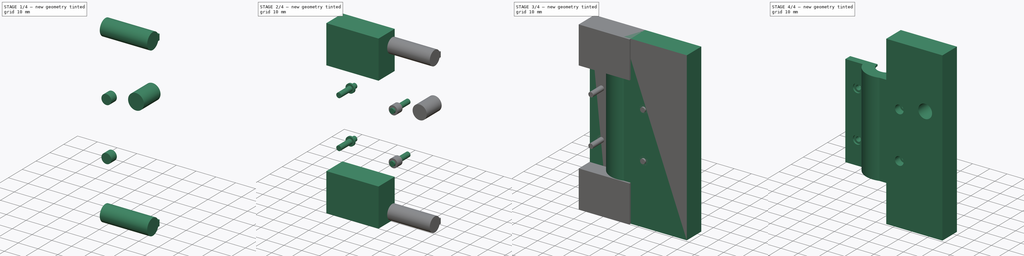
[diagram: build sequence overview — one tinted view per stage of 4, left to right]
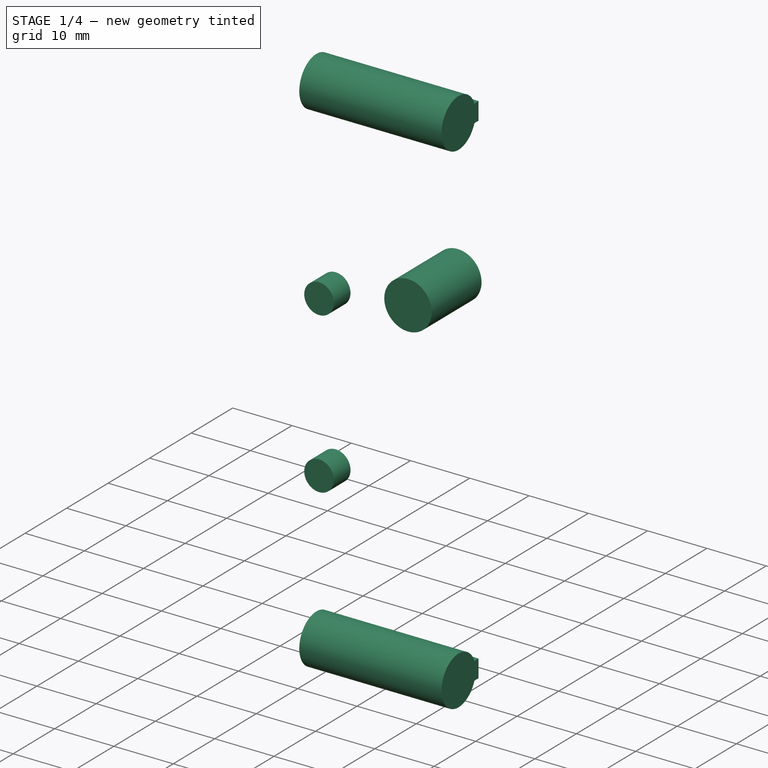
[diagram: stage 1 of 4 — iso view after this stage's code; geometry added in this stage tinted green]
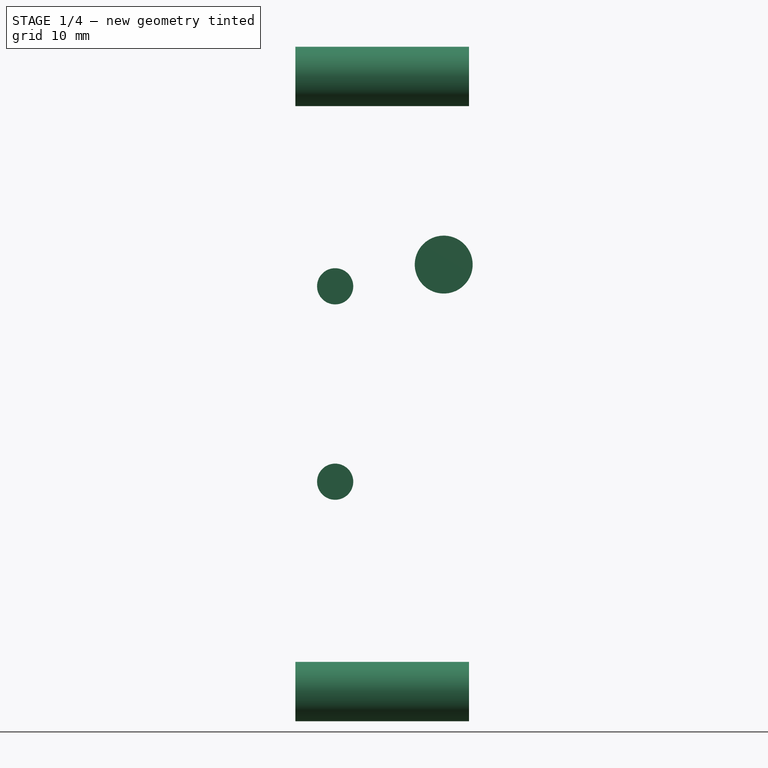
[diagram: stage 1 of 4 — front view after this stage's code; geometry added in this stage tinted green]
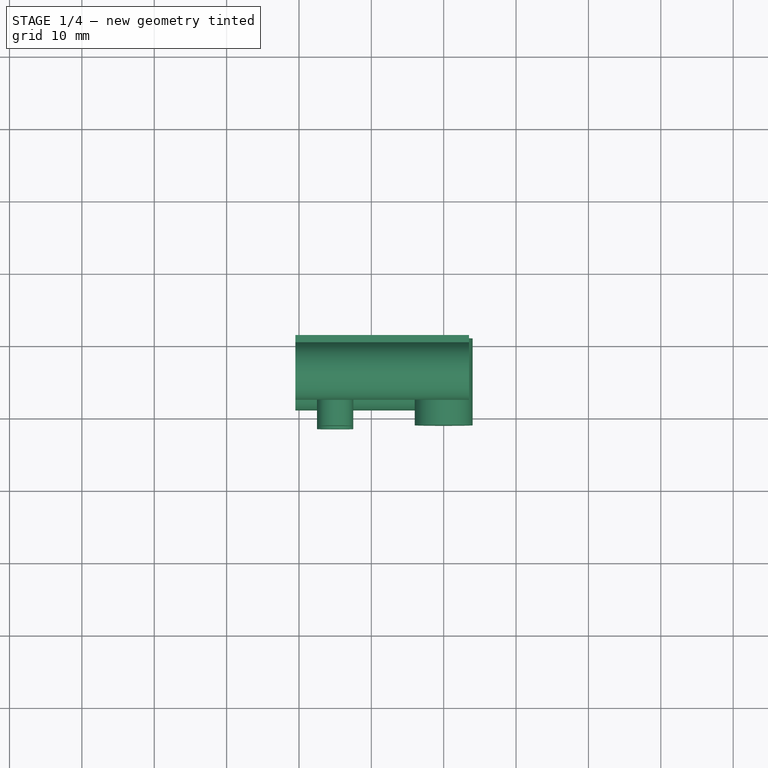
[diagram: stage 1 of 4 — top view after this stage's code; geometry added in this stage tinted green]
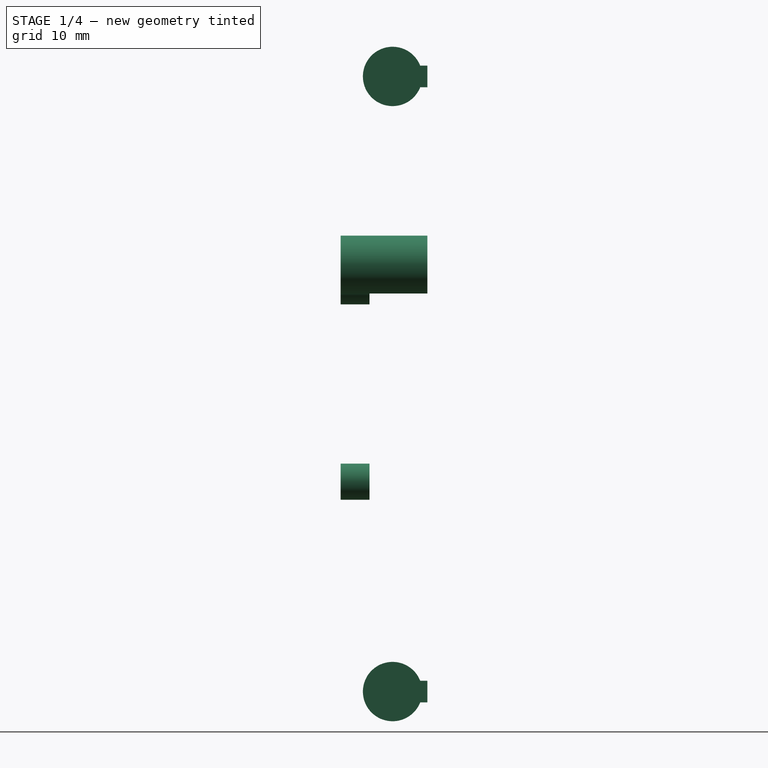
[diagram: stage 1 of 4 — right view after this stage's code; geometry added in this stage tinted green]
FCSTD DOCUMENT  (FreeCAD 0.16R6707 (Git))
Label: LeftShoulder
License: All rights reserved
LicenseURL: http://en.wikipedia.org/wiki/All_rights_reserved
objects: Sketcher::SketchObject×9, PartDesign::Pad×9, Part::MultiFuse×2, Part::Cut×2
note: 31 computed .brp shape members not serialized (recipe doc carries the construction recipe); baked Part::Feature solids carry a one-line shape summary decoded from their .brp

FEATURE [PartDesign::Pad] Pad006
  Length = 24
  Length2 = 100
  Placement = pos=(33.5,0,0) rot=(0.57735,0.57735,0.57735;2.0944rad)
  Reversed = true
  Sketch = -> Sketch008
  Type = 0
FEATURE [PartDesign::Pad] Pad007
  Length = 4
  Length2 = 100
  Placement = pos=(0,-12,0) rot=(1,0,0;1.5708rad)
  Reversed = true
  Sketch = -> Sketch010
  Type = 0
FEATURE [Sketcher::SketchObject] Sketch012
  Placement = pos=(0,0,0) rot=(1,0,0;1.5708rad)
  sketch-geometry (1):
    g0: Circle CenterX=30 CenterY=65 CenterZ=0 NormalX=0 NormalY=0 NormalZ=1 Radius=4
  constraints (3):
    c: Radius(g0) = 4
    c: DistanceY(g-1,g0) = 65
    c: DistanceX(g-1,g0) = 30
FEATURE [PartDesign::Pad] Pad008
  Length = 12
  Length2 = 100
  Placement = pos=(0,0,0) rot=(1,0,0;1.5708rad)
  Sketch = -> Sketch012
  Type = 0
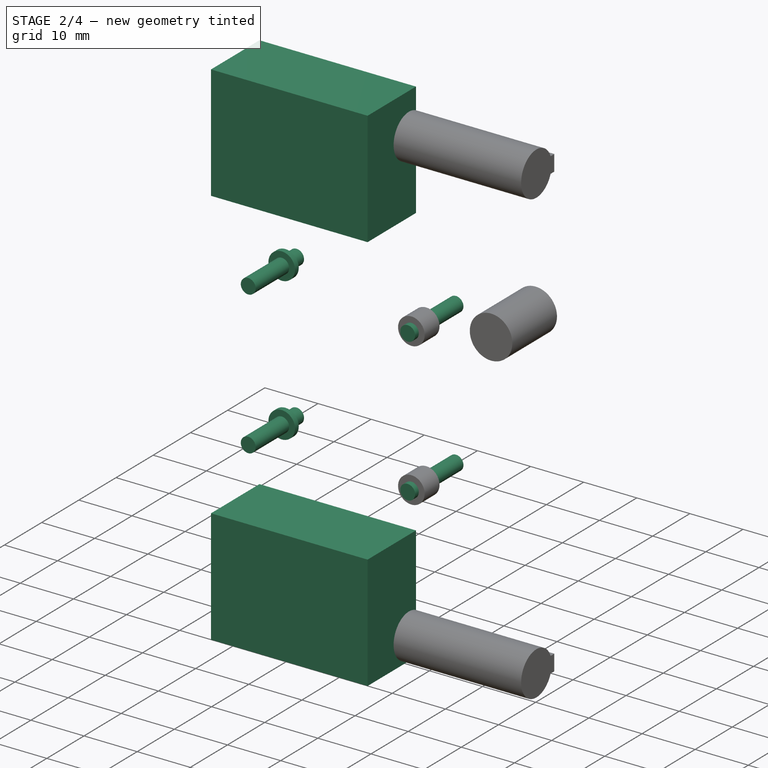
[diagram: stage 2 of 4 — iso view after this stage's code; geometry added in this stage tinted green]
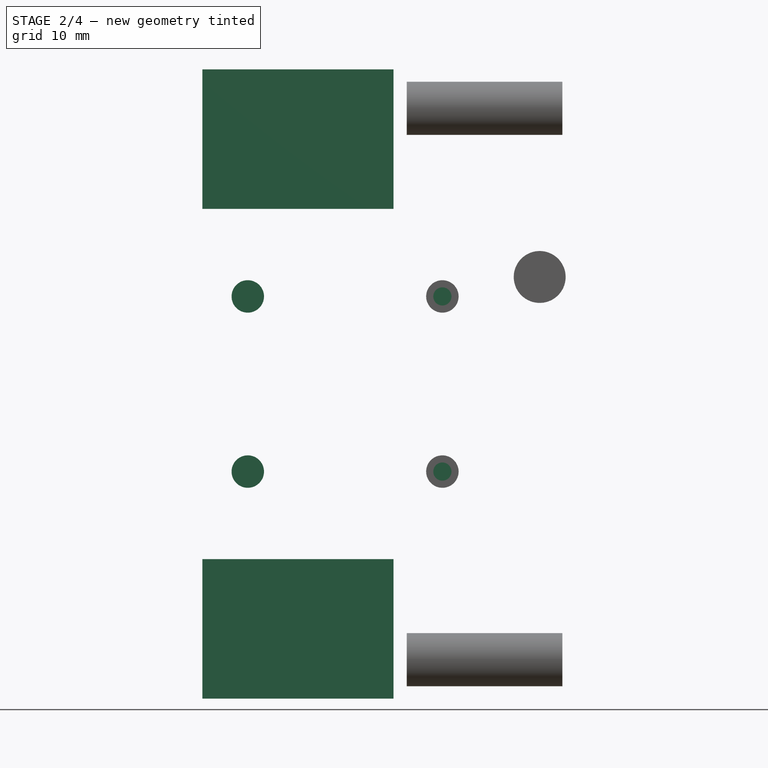
[diagram: stage 2 of 4 — front view after this stage's code; geometry added in this stage tinted green]
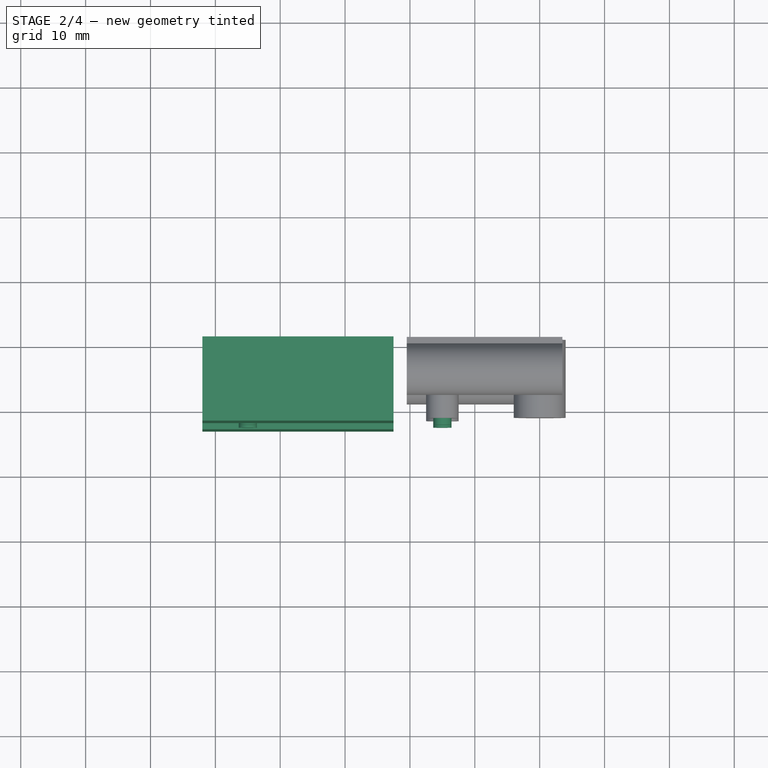
[diagram: stage 2 of 4 — top view after this stage's code; geometry added in this stage tinted green]
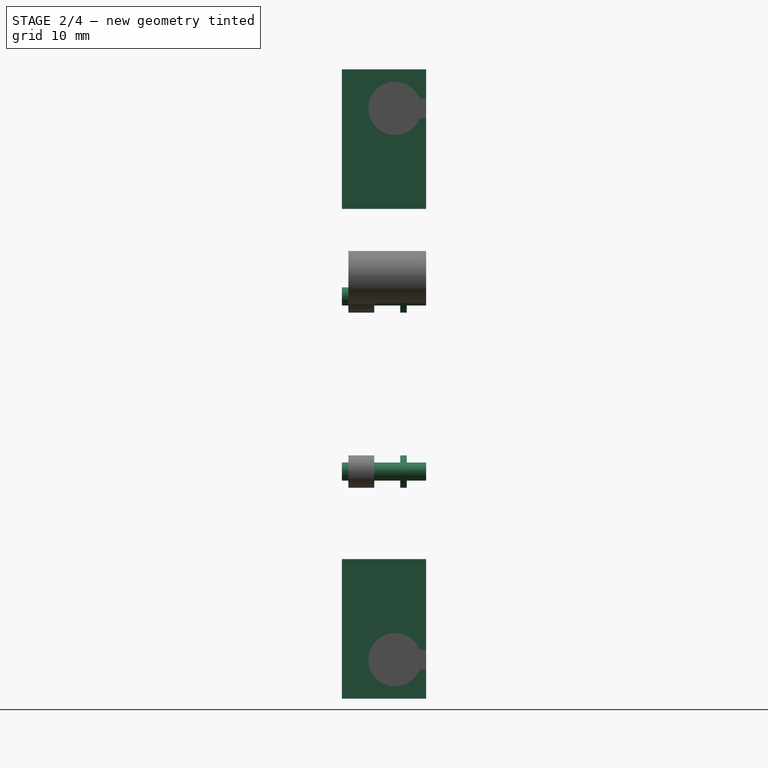
[diagram: stage 2 of 4 — right view after this stage's code; geometry added in this stage tinted green]
FEATURE [PartDesign::Pad] Pad004
  Length = 1
  Length2 = 100
  Placement = pos=(0,-4,0) rot=(1,0,0;1.5708rad)
  Reversed = true
  Sketch = -> Sketch011
  Type = 0
FEATURE [PartDesign::Pad] Pad005
  Length = 13
  Length2 = 100
  Placement = pos=(0,0,0) rot=(0,0.707107,0.707107;3.14159rad)
  Reversed = true
  Sketch = -> Sketch001
  Type = 0
FEATURE [Part::MultiFuse] Fusion001  label="CutBlock"
  Shapes = -> [Pad004,Pad005,Pad006,Pad007]
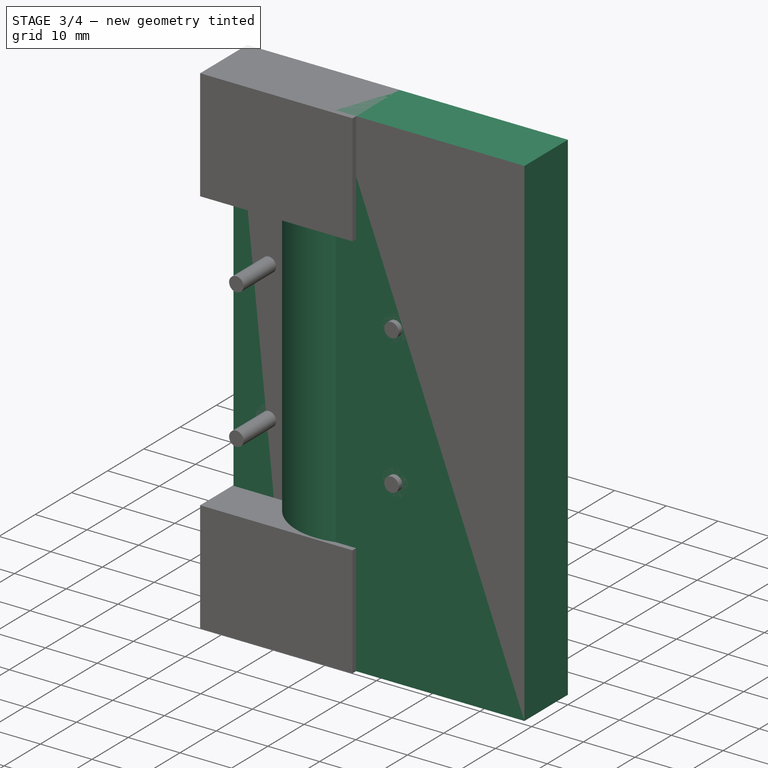
[diagram: stage 3 of 4 — iso view after this stage's code; geometry added in this stage tinted green]
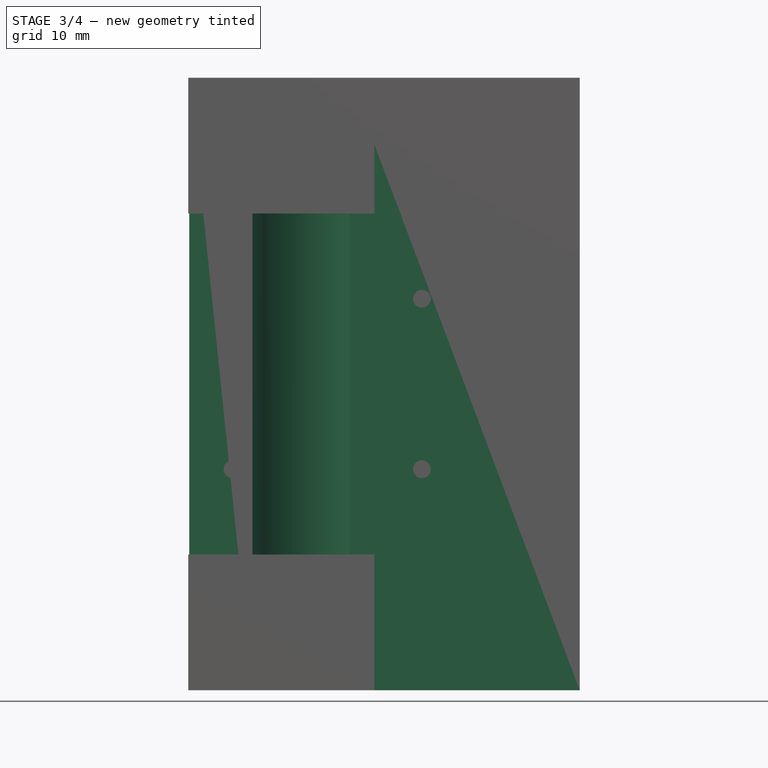
[diagram: stage 3 of 4 — front view after this stage's code; geometry added in this stage tinted green]
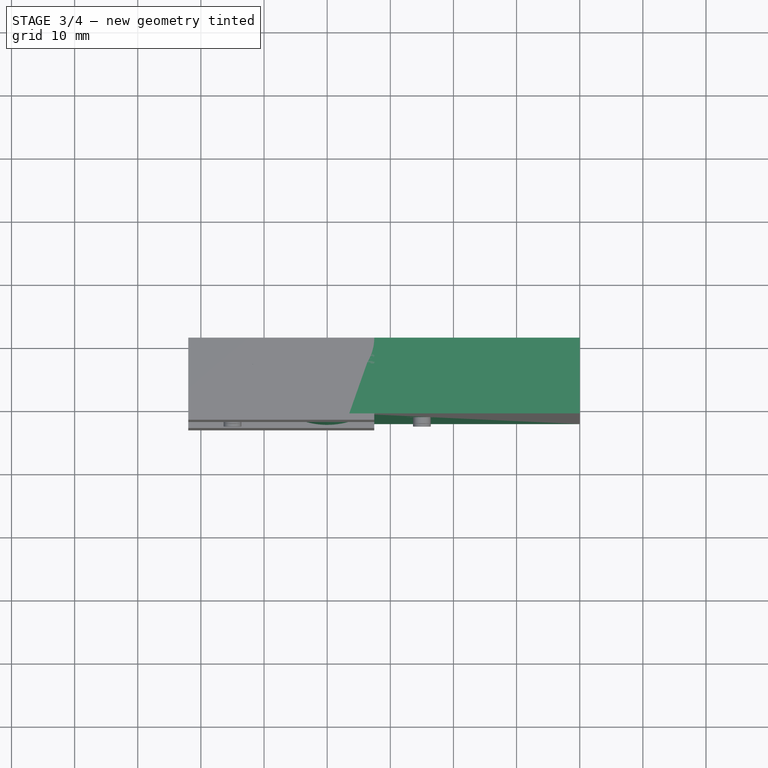
[diagram: stage 3 of 4 — top view after this stage's code; geometry added in this stage tinted green]
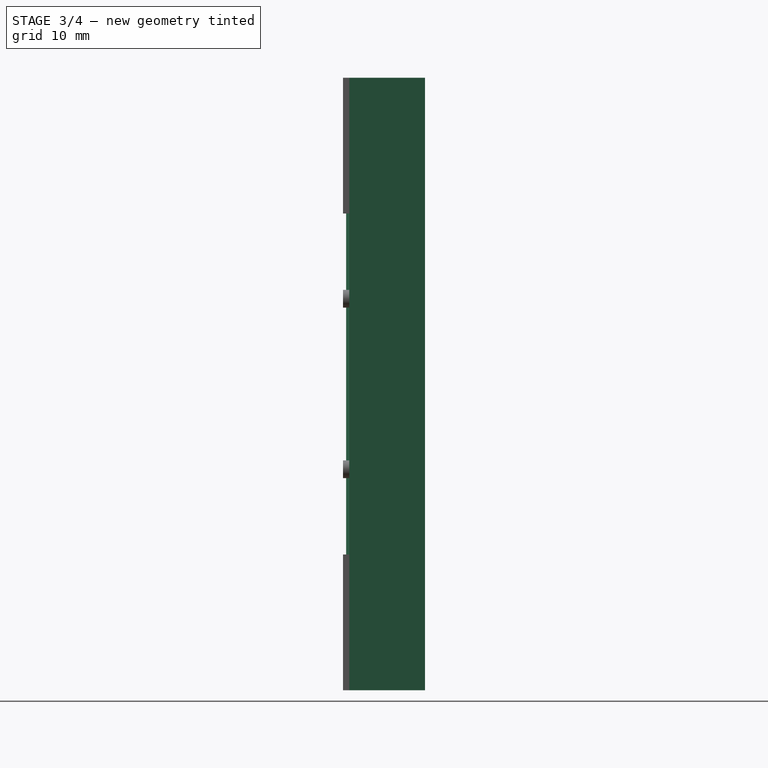
[diagram: stage 3 of 4 — right view after this stage's code; geometry added in this stage tinted green]
FEATURE [Sketcher::SketchObject] Sketch
  sketch-geometry (8):
    g0: ArcOfCircle CenterX=0 CenterY=0 CenterZ=0 NormalX=0 NormalY=0 NormalZ=1 Radius=7.46 StartAngle=3.14159 EndAngle=6.28319
    g1: LineSegment StartX=-7.46 StartY=0 StartZ=0 EndX=-21.8427 EndY=0 EndZ=0
    g2: LineSegment StartX=-21.8427 StartY=0 StartZ=0 EndX=-21.8427 EndY=-4 EndZ=0
    g3: LineSegment StartX=40 StartY=-12 StartZ=0 EndX=40 EndY=3e-12 EndZ=0
    g4: ArcOfCircle CenterX=0 CenterY=0 CenterZ=0 NormalX=0 NormalY=0 NormalZ=1 Radius=12.5 StartAngle=3.46732 EndAngle=4.99618
    g5: LineSegment StartX=-21.8427 StartY=-4 StartZ=0 EndX=-11.8427 EndY=-4 EndZ=0
    g6: LineSegment StartX=3.5 StartY=-12 StartZ=0 EndX=40 EndY=-12 EndZ=0
    g7: LineSegment StartX=7.46 StartY=3e-12 StartZ=0 EndX=40 EndY=3e-12 EndZ=0
  constraints (24):
    c: PointOnObject(g0,g-1)
    c: PointOnObject(g0,g-1)
    c: Coincident(g0,g-1)
    c: Radius(g0) = 7.46  'BearingRadius'
    c: Horizontal(g1)
    c: Coincident(g1,g2)
    c: Vertical(g2)
    c: Vertical(g3)
    c: Coincident(g1,g0)
    c: DistanceY(g2,g2) = 4
    c: Coincident(g4,g-1)
    c: Coincident(g5,g2)
    c: Coincident(g5,g4)
    c: Horizontal(g5)
    c: Horizontal(g6)
    c: Coincident(g6,g4)
    c: Radius(g4) = 12.5
    c: Coincident(g6,g3)
    c: DistanceX(g5,g5) = 10
    c: Horizontal(g7)
    c: Coincident(g7,g0)
    c: DistanceY(g3,g3) = 12
    c: Coincident(g7,g3)
    c: DistanceX(g-1,g3) = 40
FEATURE [PartDesign::Pad] Pad
  Length = 97
  Length2 = 100
  Sketch = -> Sketch
  Type = 0
FEATURE [Sketcher::SketchObject] Sketch001
  Placement = pos=(0,0,0) rot=(0,0.707107,0.707107;3.14159rad)
  sketch-geometry (12):
    g0: LineSegment StartX=22 StartY=0 StartZ=0 EndX=-7.46 EndY=0 EndZ=0
    g1: LineSegment StartX=-7.46 StartY=0 StartZ=0 EndX=-7.46 EndY=21.5 EndZ=0
    g2: LineSegment StartX=-7.46 StartY=21.5 StartZ=0 EndX=22 EndY=21.5 EndZ=0
    g3: LineSegment StartX=22 StartY=21.5 StartZ=0 EndX=22 EndY=0 EndZ=0
    g4: LineSegment StartX=22 StartY=75.5 StartZ=0 EndX=-7.46 EndY=75.5 EndZ=0
    g5: LineSegment StartX=-7.46 StartY=75.5 StartZ=0 EndX=-7.46 EndY=97 EndZ=0
    g6: LineSegment StartX=-7.46 StartY=97 StartZ=0 EndX=22 EndY=97 EndZ=0
    g7: LineSegment StartX=22 StartY=97 StartZ=0 EndX=22 EndY=75.5 EndZ=0
    g8: Circle CenterX=15 CenterY=62 CenterZ=0 NormalX=0 NormalY=0 NormalZ=1 Radius=1.4
    g9: Circle CenterX=15 CenterY=35 CenterZ=0 NormalX=0 NormalY=0 NormalZ=1 Radius=1.4
    g10: Circle CenterX=-15 CenterY=62 CenterZ=0 NormalX=0 NormalY=0 NormalZ=1 Radius=1.4
    g11: Circle CenterX=-15 CenterY=35 CenterZ=0 NormalX=0 NormalY=0 NormalZ=1 Radius=1.4
  constraints (36):
    c: Coincident(g0,g1)
    c: Coincident(g1,g2)
    c: Coincident(g2,g3)
    c: Coincident(g3,g0)
    c: Horizontal(g0)
    c: Horizontal(g2)
    c: Vertical(g1)
    c: Vertical(g3)
    c: PointOnObject(g0,g-1)
    c: DistanceX(g0,g-1) = 7.46
    c: DistanceX(g-1,g0) = 22
    c: DistanceY(g3,g3) = 21.5
    c: Coincident(g4,g5)
    c: Coincident(g5,g6)
    c: Coincident(g6,g7)
    c: Coincident(g7,g4)
    c: Horizontal(g4)
    c: Horizontal(g6)
    c: Vertical(g5)
    c: Vertical(g7)
    c: DistanceX(g4,g1) = 0
    c: DistanceY(g0,g4) = 75.5
    c: DistanceX(g2,g4) = 0
    c: DistanceY(g4,g5) = 21.5
    c: DistanceX(g10,g8) = 30
    c: DistanceX(g9,g8) = 0
    c: DistanceX(g10,g11) = 0
    c: DistanceY(g9,g11) = 0
    c: Radius(g8) = 1.4
    c: Equal(g8,g9)
    c: Equal(g8,g11)
    c: Equal(g8,g10)
    c: DistanceY(g0,g9) = 35
    c: DistanceY(g11,g10) = 27
    c: DistanceX(g11,g-1) = 15
    c: DistanceY(g8,g10) = 0
FEATURE [Sketcher::SketchObject] Sketch005
  Placement = pos=(0,0,21.5) rot=(0,0,1;3.14159rad)
  sketch-geometry (4):
    g0: ArcOfCircle CenterX=0 CenterY=0 CenterZ=0 NormalX=0 NormalY=0 NormalZ=1 Radius=7.46 StartAngle=0 EndAngle=3.14159
    g1: LineSegment StartX=-7.46 StartY=-2e-12 StartZ=0 EndX=-6 EndY=-2e-12 EndZ=0
    g2: LineSegment StartX=7.46 StartY=0 StartZ=0 EndX=6 EndY=0 EndZ=0
    g3: ArcOfCircle CenterX=0 CenterY=0 CenterZ=0 NormalX=0 NormalY=0 NormalZ=1 Radius=6 StartAngle=0 EndAngle=3.14159
  constraints (12):
    c: Coincident(g0,g-1)
    c: PointOnObject(g0,g-1)
    c: PointOnObject(g0,g-1)
    c: Horizontal(g1)
    c: Horizontal(g2)
    c: Coincident(g2,g0)
    c: Coincident(g1,g0)
    c: Coincident(g3,g-1)
    c: Coincident(g3,g1)
    c: Coincident(g3,g2)
    c: Radius(g0) = 7.46
    c: Radius(g3) = 6
FEATURE [PartDesign::Pad] Pad001
  Length = 1
  Length2 = 100
  Placement = pos=(0,0,21.5) rot=(0,0,1;3.14159rad)
  Sketch = -> Sketch005
  Type = 0
FEATURE [Sketcher::SketchObject] Sketch006
  Placement = pos=(0,0,47.5) rot=(0,0,1;3.14159rad)
  sketch-geometry (4):
    g0: ArcOfCircle CenterX=0 CenterY=0 CenterZ=0 NormalX=0 NormalY=0 NormalZ=1 Radius=7.46 StartAngle=0 EndAngle=3.14159
    g1: LineSegment StartX=-7.46 StartY=-1e-12 StartZ=0 EndX=-6 EndY=-1e-12 EndZ=0
    g2: LineSegment StartX=7.46 StartY=0 StartZ=0 EndX=6 EndY=0 EndZ=0
    g3: ArcOfCircle CenterX=0 CenterY=0 CenterZ=0 NormalX=0 NormalY=0 NormalZ=1 Radius=6 StartAngle=0 EndAngle=3.14159
  constraints (12):
    c: Coincident(g0,g-1)
    c: PointOnObject(g0,g-1)
    c: PointOnObject(g0,g-1)
    c: Horizontal(g1)
    c: Horizontal(g2)
    c: Coincident(g2,g0)
    c: Coincident(g1,g0)
    c: Coincident(g3,g-1)
    c: Coincident(g3,g1)
    c: Coincident(g3,g2)
    c: Radius(g0) = 7.46
    c: Radius(g3) = 6
FEATURE [Sketcher::SketchObject] Sketch007
  Placement = pos=(0,0,74.5) rot=(0,0,1;3.14159rad)
  sketch-geometry (4):
    g0: ArcOfCircle CenterX=0 CenterY=0 CenterZ=0 NormalX=0 NormalY=0 NormalZ=1 Radius=7.46 StartAngle=0 EndAngle=3.14159
    g1: LineSegment StartX=-7.46 StartY=-2e-12 StartZ=0 EndX=-6 EndY=-2e-12 EndZ=0
    g2: LineSegment StartX=7.46 StartY=0 StartZ=0 EndX=6 EndY=0 EndZ=0
    g3: ArcOfCircle CenterX=0 CenterY=0 CenterZ=0 NormalX=0 NormalY=0 NormalZ=1 Radius=6 StartAngle=0 EndAngle=3.14159
  constraints (12):
    c: Coincident(g0,g-1)
    c: PointOnObject(g0,g-1)
    c: PointOnObject(g0,g-1)
    c: Horizontal(g1)
    c: Horizontal(g2)
    c: Coincident(g2,g0)
    c: Coincident(g1,g0)
    c: Coincident(g3,g-1)
    c: Coincident(g3,g1)
    c: Coincident(g3,g2)
    c: Radius(g0) = 7.46
    c: Radius(g3) = 6
FEATURE [PartDesign::Pad] Pad002
  Length = 2
  Length2 = 100
  Placement = pos=(0,0,47.5) rot=(0,0,1;3.14159rad)
  Sketch = -> Sketch006
  Type = 0
FEATURE [PartDesign::Pad] Pad003
  Length = 1
  Length2 = 100
  Placement = pos=(0,0,74.5) rot=(0,0,1;3.14159rad)
  Sketch = -> Sketch007
  Type = 0
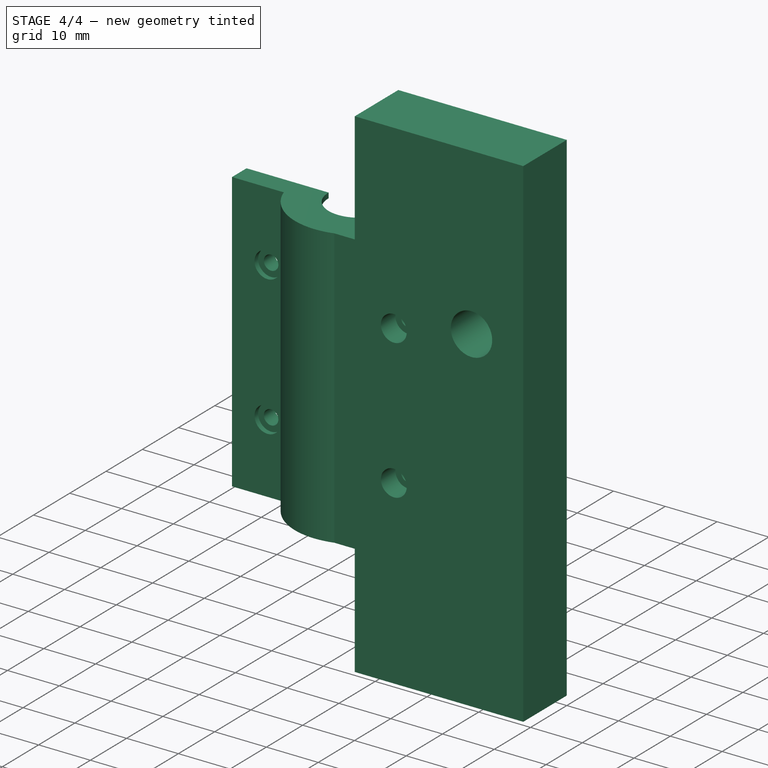
[diagram: stage 4 of 4 — iso view after this stage's code; geometry added in this stage tinted green]
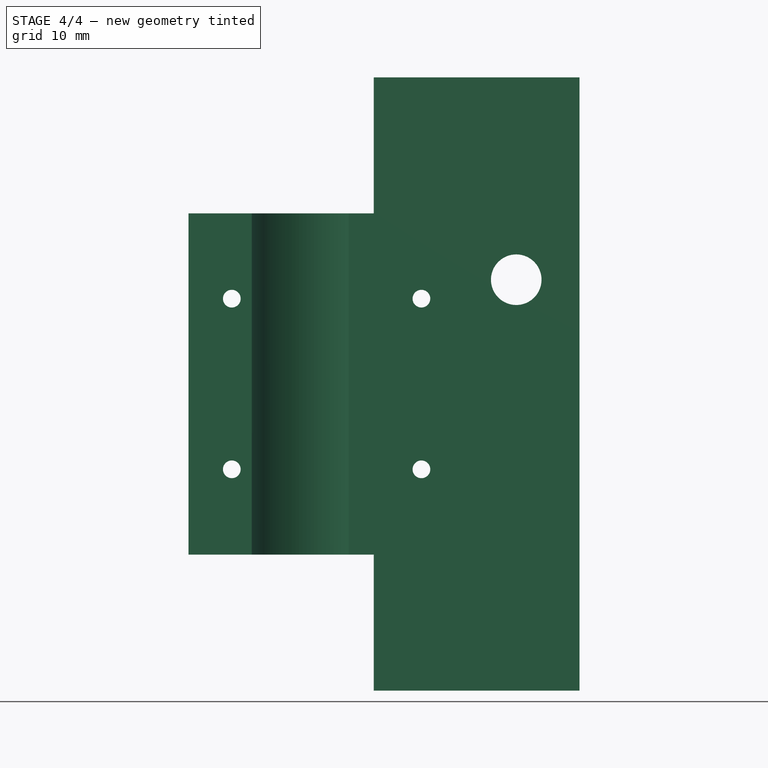
[diagram: stage 4 of 4 — front view after this stage's code; geometry added in this stage tinted green]
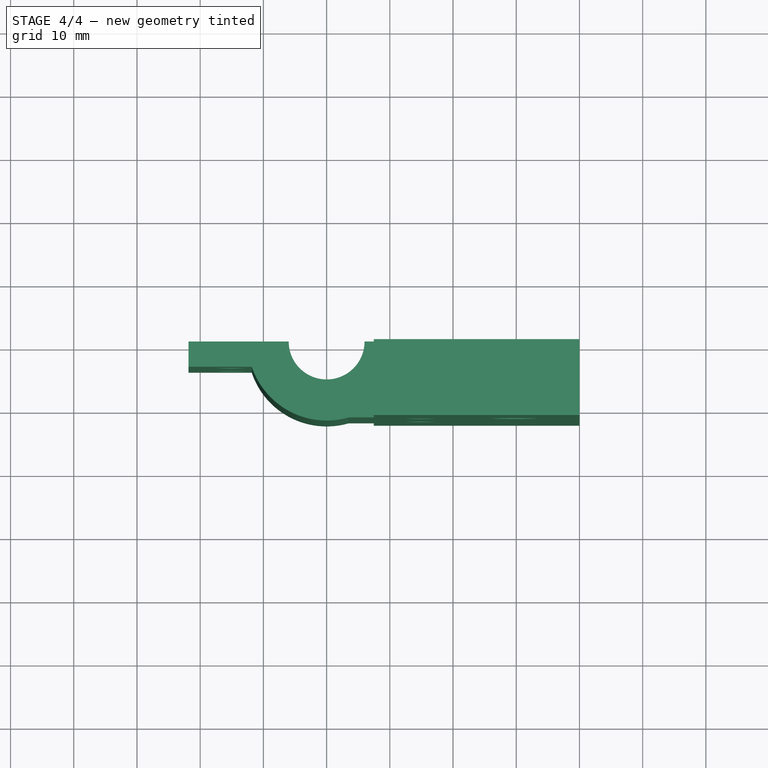
[diagram: stage 4 of 4 — top view after this stage's code; geometry added in this stage tinted green]
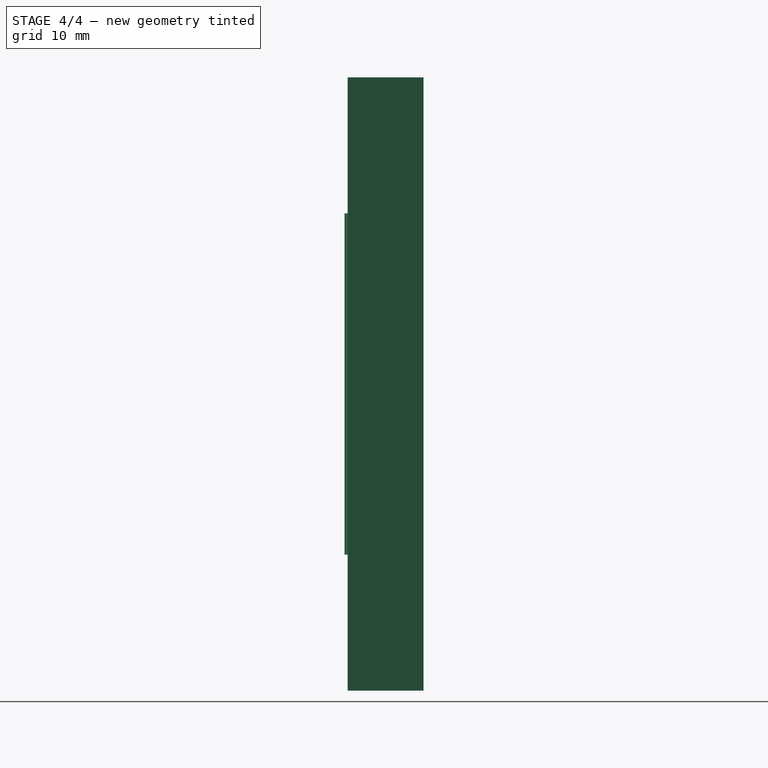
[diagram: stage 4 of 4 — right view after this stage's code; geometry added in this stage tinted green]
FEATURE [Sketcher::SketchObject] Sketch008
  Placement = pos=(33.5,0,0) rot=(0.57735,0.57735,0.57735;2.0944rad)
  sketch-geometry (8):
    g0: ArcOfCircle CenterX=-4.81576 CenterY=6 CenterZ=0 NormalX=0 NormalY=0 NormalZ=1 Radius=4.1 StartAngle=0.37455 EndAngle=5.90864
    g1: ArcOfCircle CenterX=-4.81576 CenterY=91 CenterZ=0 NormalX=0 NormalY=0 NormalZ=1 Radius=4.1 StartAngle=0.37455 EndAngle=5.90864
    g2: LineSegment StartX=-1 StartY=92.5 StartZ=0 EndX=0 EndY=92.5 EndZ=0
    g3: LineSegment StartX=0 StartY=92.5 StartZ=0 EndX=0 EndY=89.5 EndZ=0
    g4: LineSegment StartX=0 StartY=89.5 StartZ=0 EndX=-1 EndY=89.5 EndZ=0
    g5: LineSegment StartX=-1 StartY=7.5 StartZ=0 EndX=0 EndY=7.5 EndZ=0
    g6: LineSegment StartX=0 StartY=7.5 StartZ=0 EndX=0 EndY=4.5 EndZ=0
    g7: LineSegment StartX=0 StartY=4.5 StartZ=0 EndX=-1 EndY=4.5 EndZ=0
  constraints (26):
    c: Coincident(g2,g3)
    c: Coincident(g3,g4)
    c: Coincident(g5,g6)
    c: Coincident(g6,g7)
    c: Horizontal(g5)
    c: Horizontal(g7)
    c: Horizontal(g4)
    c: Horizontal(g2)
    c: Vertical(g3)
    c: Vertical(g6)
    c: Equal(g6,g3)
    c: DistanceY(g3,g3) = 3
    c: Equal(g2,g4)
    c: Equal(g4,g5)
    c: Equal(g5,g7)
    c: DistanceX(g2,g2) = 1
    c: Coincident(g1,g2)
    c: Coincident(g1,g4)
    c: Coincident(g0,g5)
    c: Coincident(g0,g7)
    c: DistanceX(g3,g5) = 0
    c: DistanceX(g6,g-1) = 0
    c: Radius(g0) = 4.1
    c: Equal(g0,g1)
    c: DistanceY(g0,g1) = 85
    c: DistanceY(g-1,g0) = 6
FEATURE [Sketcher::SketchObject] Sketch010
  Placement = pos=(0,-12,0) rot=(1,0,0;1.5708rad)
  sketch-geometry (2):
    g0: Circle CenterX=15 CenterY=62 CenterZ=0 NormalX=0 NormalY=0 NormalZ=1 Radius=2.5
    g1: Circle CenterX=15 CenterY=35 CenterZ=0 NormalX=0 NormalY=0 NormalZ=1 Radius=2.5
  constraints (6):
    c: DistanceX(g0,g1) = 0
    c: DistanceY(g1,g0) = 27
    c: Radius(g0) = 2.5
    c: Equal(g0,g1)
    c: DistanceX(g-1,g1) = 15
    c: DistanceY(g-1,g1) = 35
FEATURE [Sketcher::SketchObject] Sketch011
  Placement = pos=(0,-4,0) rot=(1,0,0;1.5708rad)
  sketch-geometry (2):
    g0: Circle CenterX=-15 CenterY=62 CenterZ=0 NormalX=0 NormalY=0 NormalZ=1 Radius=2.5
    g1: Circle CenterX=-15 CenterY=35 CenterZ=0 NormalX=0 NormalY=0 NormalZ=1 Radius=2.5
  constraints (6):
    c: DistanceX(g0,g1) = 0
    c: DistanceY(g1,g0) = 27
    c: DistanceY(g-1,g1) = 35
    c: DistanceX(g1,g-1) = 15
    c: Radius(g1) = 2.5
    c: Equal(g1,g0)
FEATURE [Part::MultiFuse] Fusion  label="BaseBlock"
  Shapes = -> [Pad,Pad001,Pad002,Pad003]
FEATURE [Part::Cut] Cut
  Base = -> Fusion
  Tool = -> Fusion001
FEATURE [Part::Cut] Cut001
  Base = -> Cut
  Tool = -> Pad008
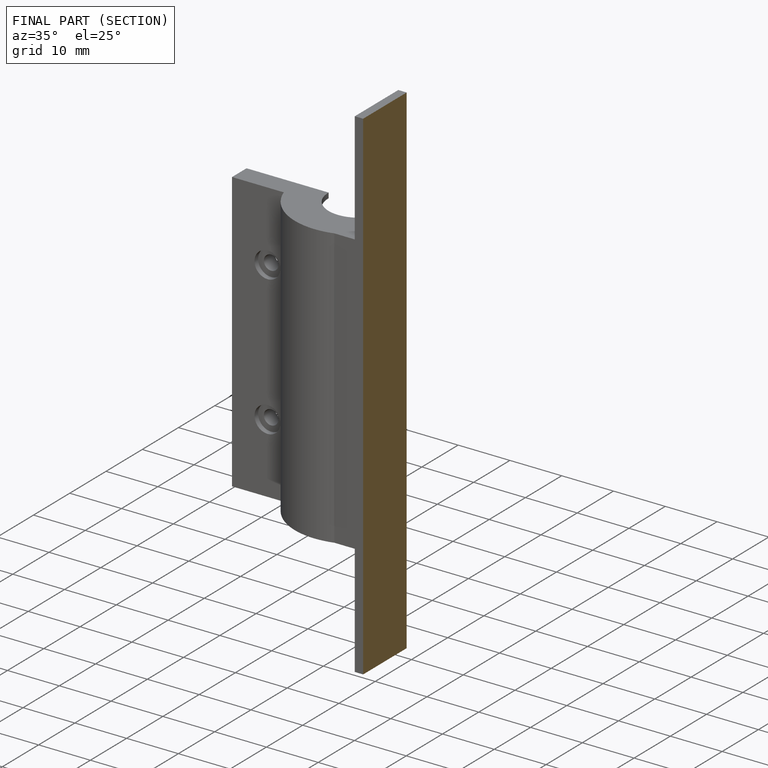
[diagram: finished part — half-section view (interior)]
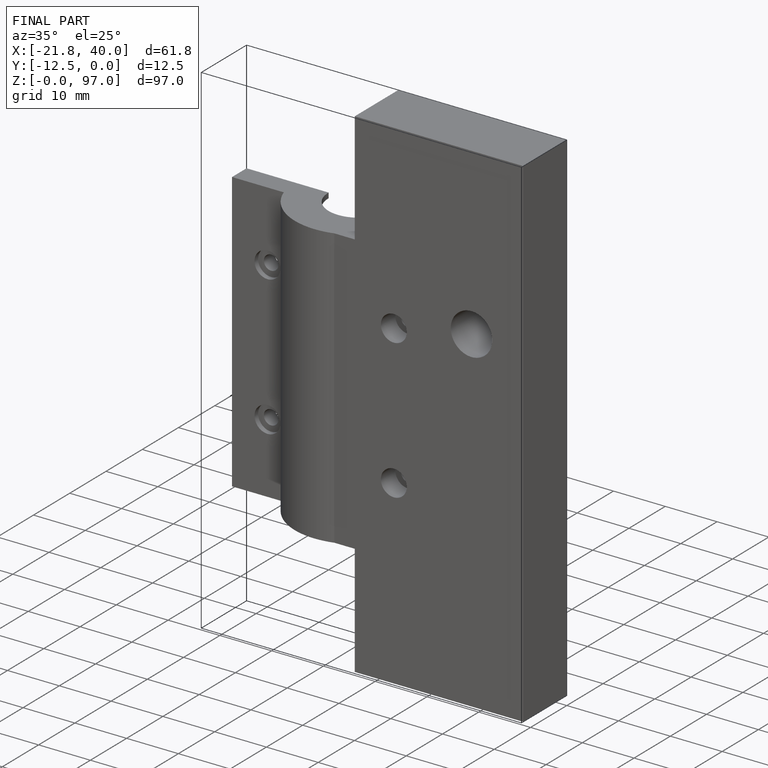
[diagram: finished part — iso view with bounding-box wireframe]
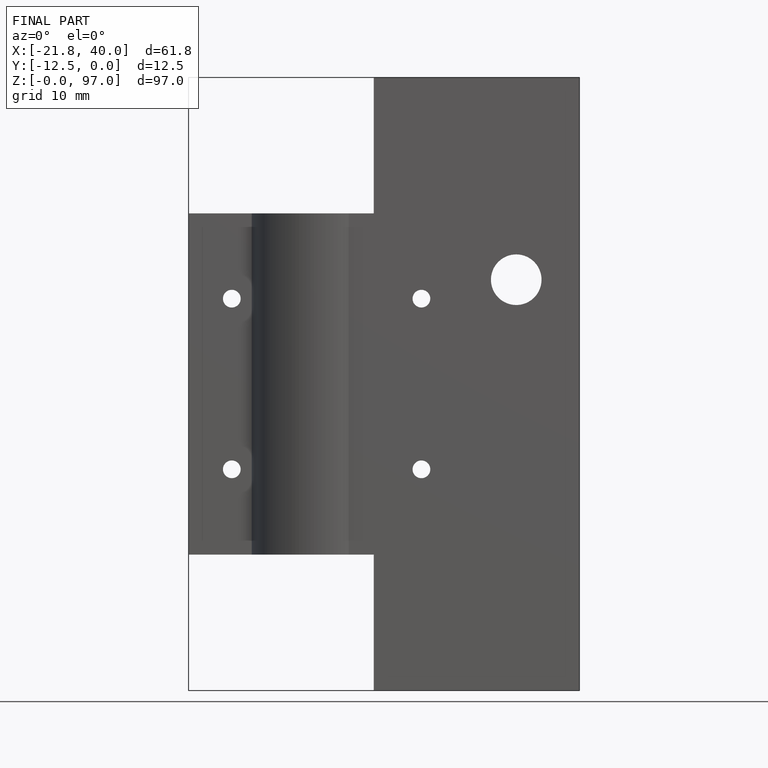
[diagram: finished part — front view with bounding-box wireframe]
